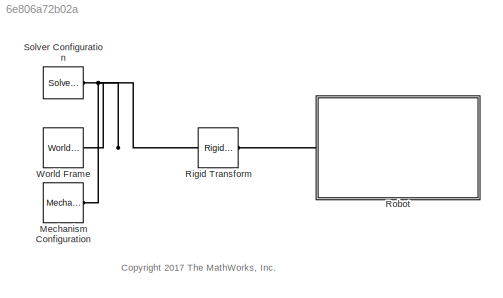
MODEL slx_6e806a72b02a
KIND model
CONFIG AbsTol = auto
CONFIG FixedStep = auto
CONFIG MaxStep = auto
CONFIG MinStep = auto
CONFIG PreLoadFcn = robotParameters
CONFIG RelTol = 1e-3
CONFIG SampleTimeConstraint = Unconstrained
CONFIG Solver = VariableStepAuto
CONFIG SolverMode = Auto
CONFIG SolverName = VariableStepAuto
CONFIG StartTime = 0.0
CONFIG StopTime = 10.0
BLOCK [Reference] Mechanism Configuration  REF=sm_lib/Utilities/Mechanism
Configuration
  Ports = [0, 0, 0, 0, 0, 0, 1]
  SourceBlock = sm_lib/Utilities/Mechanism\nConfiguration
  SourceType = Mechanism\nConfiguration
BLOCK [Reference] Rigid Transform  REF=sm_lib/Frames and
Transforms/Rigid
Transform
  Ports = [0, 0, 0, 0, 0, 1, 1]
  SourceBlock = sm_lib/Frames and\nTransforms/Rigid\nTransform
  SourceType = Rigid\nTransform
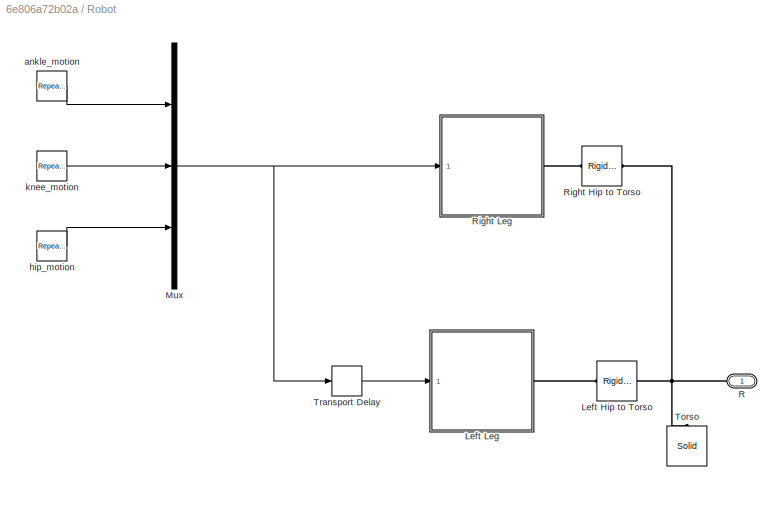
BLOCK [SubSystem] Robot
  Ports = [0, 0, 0, 0, 0, 1]
  RequestExecContextInheritance = off
  Variant = off
BLOCK [Reference] Robot/Left Hip to Torso  REF=sm_lib/Frames and
Transforms/Rigid
Transform
  Ports = [0, 0, 0, 0, 0, 1, 1]
  SourceBlock = sm_lib/Frames and\nTransforms/Rigid\nTransform
  SourceType = Rigid\nTransform
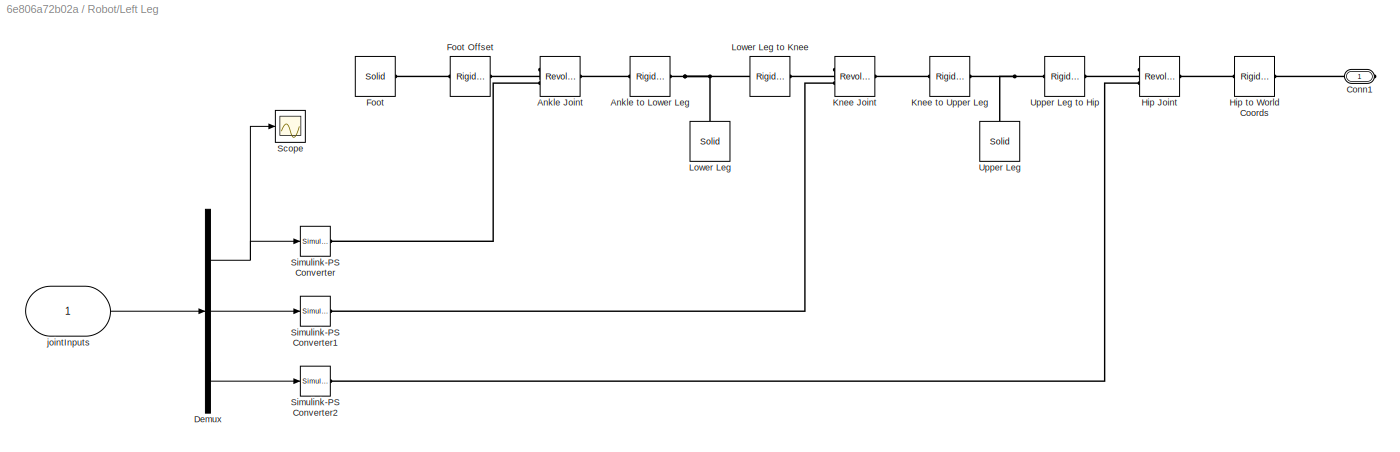
BLOCK [SubSystem] Robot/Left Leg
  Ports = [1, 0, 0, 0, 0, 0, 1]
  RequestExecContextInheritance = off
  Variant = off
BLOCK [Reference] Robot/Left Leg/Ankle Joint  REF=sm_lib/Joints/Revolute Joint
  Ports = [0, 0, 0, 0, 0, 2, 1]
  SourceBlock = sm_lib/Joints/Revolute Joint
  SourceType = Revolute Joint
BLOCK [Reference] Robot/Left Leg/Ankle to Lower Leg  REF=sm_lib/Frames and
Transforms/Rigid
Transform
  Ports = [0, 0, 0, 0, 0, 1, 1]
  SourceBlock = sm_lib/Frames and\nTransforms/Rigid\nTransform
  SourceType = Rigid\nTransform
BLOCK [PMIOPort] Robot/Left Leg/Conn1
  Port = 1
  Side = Right
BLOCK [Demux] Robot/Left Leg/Demux
  DisplayOption = bar
  Outputs = 3
  Ports = [1, 3]
BLOCK [Reference] Robot/Left Leg/Foot  REF=sm_lib/Body Elements/Solid
  Ports = [0, 0, 0, 0, 0, 1]
  SourceBlock = sm_lib/Body Elements/Solid
  SourceType = Solid
BLOCK [Reference] Robot/Left Leg/Foot Offset  REF=sm_lib/Frames and
Transforms/Rigid
Transform
  Ports = [0, 0, 0, 0, 0, 1, 1]
  SourceBlock = sm_lib/Frames and\nTransforms/Rigid\nTransform
  SourceType = Rigid\nTransform
BLOCK [Reference] Robot/Left Leg/Hip Joint  REF=sm_lib/Joints/Revolute Joint
  Ports = [0, 0, 0, 0, 0, 2, 1]
  SourceBlock = sm_lib/Joints/Revolute Joint
  SourceType = Revolute Joint
BLOCK [Reference] Robot/Left Leg/Hip to World Coords  REF=sm_lib/Frames and
Transforms/Rigid
Transform
  Ports = [0, 0, 0, 0, 0, 1, 1]
  SourceBlock = sm_lib/Frames and\nTransforms/Rigid\nTransform
  SourceType = Rigid\nTransform
BLOCK [Reference] Robot/Left Leg/Knee Joint  REF=sm_lib/Joints/Revolute Joint
  Ports = [0, 0, 0, 0, 0, 2, 1]
  SourceBlock = sm_lib/Joints/Revolute Joint
  SourceType = Revolute Joint
BLOCK [Reference] Robot/Left Leg/Knee to Upper Leg  REF=sm_lib/Frames and
Transforms/Rigid
Transform
  Ports = [0, 0, 0, 0, 0, 1, 1]
  SourceBlock = sm_lib/Frames and\nTransforms/Rigid\nTransform
  SourceType = Rigid\nTransform
BLOCK [Reference] Robot/Left Leg/Lower Leg  REF=sm_lib/Body Elements/Solid
  Ports = [0, 0, 0, 0, 0, 0, 1]
  SourceBlock = sm_lib/Body Elements/Solid
  SourceType = Solid
BLOCK [Reference] Robot/Left Leg/Lower Leg to Knee  REF=sm_lib/Frames and
Transforms/Rigid
Transform
  Ports = [0, 0, 0, 0, 0, 1, 1]
  SourceBlock = sm_lib/Frames and\nTransforms/Rigid\nTransform
  SourceType = Rigid\nTransform
BLOCK [Scope] Robot/Left Leg/Scope
  Ports = [1]
  ScopeSpecificationString = Simulink.scopes.TimeScopeBlockCfg('CurrentConfiguration', extmgr.ConfigurationSet(extmgr.Configuration('Core','General UI',true),extmgr.Configuration('Core','Source UI',true),extmgr.Configuration('Sources','WiredSimulink',true),extmgr.Configuration('Visuals','Time Domain',true,'SerializedDisplays',{struct('MinYLimReal','-10','MaxYLimReal','10','YLabelReal','','MinYLimMag','0','MaxYLimMag','10','Le...<+728ch>
BLOCK [Reference] Robot/Left Leg/Simulink-PS Converter  REF=nesl_utility/Simulink-PS
Converter
  Ports = [1, 0, 0, 0, 0, 0, 1]
  SourceBlock = nesl_utility/Simulink-PS\nConverter
  SourceType = Simulink-PS\nConverter
BLOCK [Reference] Robot/Left Leg/Simulink-PS Converter1  REF=nesl_utility/Simulink-PS
Converter
  Ports = [1, 0, 0, 0, 0, 0, 1]
  SourceBlock = nesl_utility/Simulink-PS\nConverter
  SourceType = Simulink-PS\nConverter
BLOCK [Reference] Robot/Left Leg/Simulink-PS Converter2  REF=nesl_utility/Simulink-PS
Converter
  Ports = [1, 0, 0, 0, 0, 0, 1]
  SourceBlock = nesl_utility/Simulink-PS\nConverter
  SourceType = Simulink-PS\nConverter
BLOCK [Reference] Robot/Left Leg/Upper Leg  REF=sm_lib/Body Elements/Solid
  Ports = [0, 0, 0, 0, 0, 0, 1]
  SourceBlock = sm_lib/Body Elements/Solid
  SourceType = Solid
BLOCK [Reference] Robot/Left Leg/Upper Leg to Hip  REF=sm_lib/Frames and
Transforms/Rigid
Transform
  Ports = [0, 0, 0, 0, 0, 1, 1]
  SourceBlock = sm_lib/Frames and\nTransforms/Rigid\nTransform
  SourceType = Rigid\nTransform
BLOCK [Inport] Robot/Left Leg/jointInputs
  IconDisplay = Port number
BLOCK [Mux] Robot/Mux
  DisplayOption = bar
  Inputs = 3
  Ports = [3, 1]
BLOCK [PMIOPort] Robot/R
  Port = 1
  Side = Left
BLOCK [Reference] Robot/Right Hip to Torso  REF=sm_lib/Frames and
Transforms/Rigid
Transform
  Ports = [0, 0, 0, 0, 0, 1, 1]
  SourceBlock = sm_lib/Frames and\nTransforms/Rigid\nTransform
  SourceType = Rigid\nTransform
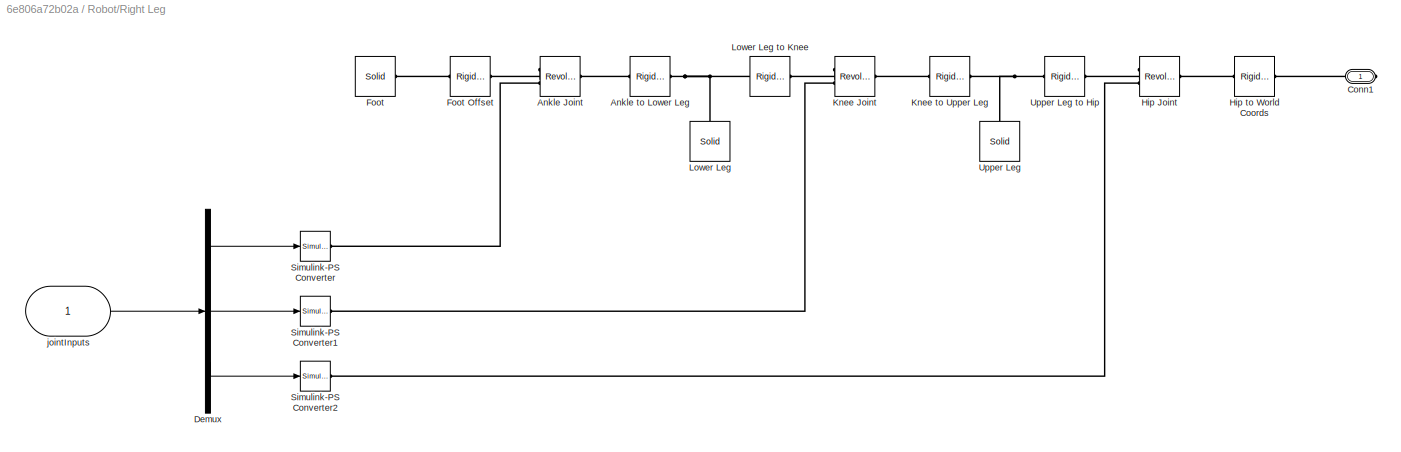
BLOCK [SubSystem] Robot/Right Leg
  Ports = [1, 0, 0, 0, 0, 0, 1]
  RequestExecContextInheritance = off
  Variant = off
BLOCK [Reference] Robot/Right Leg/Ankle Joint  REF=sm_lib/Joints/Revolute Joint
  Ports = [0, 0, 0, 0, 0, 2, 1]
  SourceBlock = sm_lib/Joints/Revolute Joint
  SourceType = Revolute Joint
BLOCK [Reference] Robot/Right Leg/Ankle to Lower Leg  REF=sm_lib/Frames and
Transforms/Rigid
Transform
  Ports = [0, 0, 0, 0, 0, 1, 1]
  SourceBlock = sm_lib/Frames and\nTransforms/Rigid\nTransform
  SourceType = Rigid\nTransform
BLOCK [PMIOPort] Robot/Right Leg/Conn1
  Port = 1
  Side = Right
BLOCK [Demux] Robot/Right Leg/Demux
  DisplayOption = bar
  Outputs = 3
  Ports = [1, 3]
BLOCK [Reference] Robot/Right Leg/Foot  REF=sm_lib/Body Elements/Solid
  Ports = [0, 0, 0, 0, 0, 1]
  SourceBlock = sm_lib/Body Elements/Solid
  SourceType = Solid
BLOCK [Reference] Robot/Right Leg/Foot Offset  REF=sm_lib/Frames and
Transforms/Rigid
Transform
  Ports = [0, 0, 0, 0, 0, 1, 1]
  SourceBlock = sm_lib/Frames and\nTransforms/Rigid\nTransform
  SourceType = Rigid\nTransform
BLOCK [Reference] Robot/Right Leg/Hip Joint  REF=sm_lib/Joints/Revolute Joint
  Ports = [0, 0, 0, 0, 0, 2, 1]
  SourceBlock = sm_lib/Joints/Revolute Joint
  SourceType = Revolute Joint
BLOCK [Reference] Robot/Right Leg/Hip to World Coords  REF=sm_lib/Frames and
Transforms/Rigid
Transform
  Ports = [0, 0, 0, 0, 0, 1, 1]
  SourceBlock = sm_lib/Frames and\nTransforms/Rigid\nTransform
  SourceType = Rigid\nTransform
BLOCK [Reference] Robot/Right Leg/Knee Joint  REF=sm_lib/Joints/Revolute Joint
  Ports = [0, 0, 0, 0, 0, 2, 1]
  SourceBlock = sm_lib/Joints/Revolute Joint
  SourceType = Revolute Joint
BLOCK [Reference] Robot/Right Leg/Knee to Upper Leg  REF=sm_lib/Frames and
Transforms/Rigid
Transform
  Ports = [0, 0, 0, 0, 0, 1, 1]
  SourceBlock = sm_lib/Frames and\nTransforms/Rigid\nTransform
  SourceType = Rigid\nTransform
BLOCK [Reference] Robot/Right Leg/Lower Leg  REF=sm_lib/Body Elements/Solid
  Ports = [0, 0, 0, 0, 0, 0, 1]
  SourceBlock = sm_lib/Body Elements/Solid
  SourceType = Solid
BLOCK [Reference] Robot/Right Leg/Lower Leg to Knee  REF=sm_lib/Frames and
Transforms/Rigid
Transform
  Ports = [0, 0, 0, 0, 0, 1, 1]
  SourceBlock = sm_lib/Frames and\nTransforms/Rigid\nTransform
  SourceType = Rigid\nTransform
BLOCK [Reference] Robot/Right Leg/Simulink-PS Converter  REF=nesl_utility/Simulink-PS
Converter
  Ports = [1, 0, 0, 0, 0, 0, 1]
  SourceBlock = nesl_utility/Simulink-PS\nConverter
  SourceType = Simulink-PS\nConverter
BLOCK [Reference] Robot/Right Leg/Simulink-PS Converter1  REF=nesl_utility/Simulink-PS
Converter
  Ports = [1, 0, 0, 0, 0, 0, 1]
  SourceBlock = nesl_utility/Simulink-PS\nConverter
  SourceType = Simulink-PS\nConverter
BLOCK [Reference] Robot/Right Leg/Simulink-PS Converter2  REF=nesl_utility/Simulink-PS
Converter
  Ports = [1, 0, 0, 0, 0, 0, 1]
  SourceBlock = nesl_utility/Simulink-PS\nConverter
  SourceType = Simulink-PS\nConverter
BLOCK [Reference] Robot/Right Leg/Upper Leg  REF=sm_lib/Body Elements/Solid
  Ports = [0, 0, 0, 0, 0, 0, 1]
  SourceBlock = sm_lib/Body Elements/Solid
  SourceType = Solid
BLOCK [Reference] Robot/Right Leg/Upper Leg to Hip  REF=sm_lib/Frames and
Transforms/Rigid
Transform
  Ports = [0, 0, 0, 0, 0, 1, 1]
  SourceBlock = sm_lib/Frames and\nTransforms/Rigid\nTransform
  SourceType = Rigid\nTransform
BLOCK [Inport] Robot/Right Leg/jointInputs
  IconDisplay = Port number
BLOCK [Reference] Robot/Torso  REF=sm_lib/Body Elements/Solid
  Ports = [0, 0, 0, 0, 0, 0, 1]
  SourceBlock = sm_lib/Body Elements/Solid
  SourceType = Solid
BLOCK [TransportDelay] Robot/Transport Delay
  DelayTime = gaitPeriod/2
  Ports = [1, 1]
BLOCK [Reference] Robot/ankle_motion  REF=simulink/Sources/Repeating
Sequence
  Ports = [0, 1]
  SourceBlock = simulink/Sources/Repeating\nSequence
  SourceType = Repeating table
BLOCK [Reference] Robot/hip_motion  REF=simulink/Sources/Repeating
Sequence
  Ports = [0, 1]
  SourceBlock = simulink/Sources/Repeating\nSequence
  SourceType = Repeating table
BLOCK [Reference] Robot/knee_motion  REF=simulink/Sources/Repeating
Sequence
  Ports = [0, 1]
  SourceBlock = simulink/Sources/Repeating\nSequence
  SourceType = Repeating table
BLOCK [Reference] Solver Configuration  REF=nesl_utility/Solver
Configuration
  Ports = [0, 0, 0, 0, 0, 0, 1]
  SourceBlock = nesl_utility/Solver\nConfiguration
  SourceType = Solver\nConfiguration
BLOCK [Reference] World Frame  REF=sm_lib/Frames and
Transforms/World Frame
  Ports = [0, 0, 0, 0, 0, 0, 1]
  SourceBlock = sm_lib/Frames and\nTransforms/World Frame
  SourceType = World Frame
ANNOTATION (root): <copyright redacted>
NET Robot/Left Leg/Demux:1 -> Robot/Left Leg/Scope:1, Robot/Left Leg/Simulink-PS Converter:1
LINE Robot/Left Leg/Demux:2 -> Robot/Left Leg/Simulink-PS Converter1:1
LINE Robot/Left Leg/Demux:3 -> Robot/Left Leg/Simulink-PS Converter2:1
LINE Robot/Left Leg/jointInputs:1 -> Robot/Left Leg/Demux:1
NET Robot/Mux:1 -> Robot/Right Leg:1, Robot/Transport Delay:1
LINE Robot/Right Leg/Demux:1 -> Robot/Right Leg/Simulink-PS Converter:1
LINE Robot/Right Leg/Demux:2 -> Robot/Right Leg/Simulink-PS Converter1:1
LINE Robot/Right Leg/Demux:3 -> Robot/Right Leg/Simulink-PS Converter2:1
LINE Robot/Right Leg/jointInputs:1 -> Robot/Right Leg/Demux:1
LINE Robot/Transport Delay:1 -> Robot/Left Leg:1
LINE Robot/ankle_motion:1 -> Robot/Mux:1
LINE Robot/hip_motion:1 -> Robot/Mux:3
LINE Robot/knee_motion:1 -> Robot/Mux:2
PNET net1: Mechanism Configuration:RConn1 -- Rigid Transform:LConn1 -- Solver Configuration:RConn1 -- World Frame:RConn1
PLINE Rigid Transform:RConn1 -- Robot:LConn1
PNET net2: Robot/Left Hip to Torso:LConn1 -- Robot/R:RConn1 -- Robot/Right Hip to Torso:LConn1 -- Robot/Torso:RConn1
PLINE Robot/Left Hip to Torso:RConn1 -- Robot/Left Leg:RConn1
PLINE Robot/Left Leg/Ankle Joint:LConn1 -- Robot/Left Leg/Foot Offset:RConn1
PLINE Robot/Left Leg/Ankle Joint:LConn2 -- Robot/Left Leg/Simulink-PS Converter:RConn1
PLINE Robot/Left Leg/Ankle Joint:RConn1 -- Robot/Left Leg/Ankle to Lower Leg:LConn1
PNET net3: Robot/Left Leg/Ankle to Lower Leg:RConn1 -- Robot/Left Leg/Lower Leg to Knee:LConn1 -- Robot/Left Leg/Lower Leg:RConn1
PLINE Robot/Left Leg/Conn1:RConn1 -- Robot/Left Leg/Hip to World Coords:RConn1
PLINE Robot/Left Leg/Foot Offset:LConn1 -- Robot/Left Leg/Foot:LConn1
PLINE Robot/Left Leg/Hip Joint:LConn1 -- Robot/Left Leg/Upper Leg to Hip:RConn1
PLINE Robot/Left Leg/Hip Joint:LConn2 -- Robot/Left Leg/Simulink-PS Converter2:RConn1
PLINE Robot/Left Leg/Hip Joint:RConn1 -- Robot/Left Leg/Hip to World Coords:LConn1
PLINE Robot/Left Leg/Knee Joint:LConn1 -- Robot/Left Leg/Lower Leg to Knee:RConn1
PLINE Robot/Left Leg/Knee Joint:LConn2 -- Robot/Left Leg/Simulink-PS Converter1:RConn1
PLINE Robot/Left Leg/Knee Joint:RConn1 -- Robot/Left Leg/Knee to Upper Leg:LConn1
PNET net4: Robot/Left Leg/Knee to Upper Leg:RConn1 -- Robot/Left Leg/Upper Leg to Hip:LConn1 -- Robot/Left Leg/Upper Leg:RConn1
PLINE Robot/Right Hip to Torso:RConn1 -- Robot/Right Leg:RConn1
PLINE Robot/Right Leg/Ankle Joint:LConn1 -- Robot/Right Leg/Foot Offset:RConn1
PLINE Robot/Right Leg/Ankle Joint:LConn2 -- Robot/Right Leg/Simulink-PS Converter:RConn1
PLINE Robot/Right Leg/Ankle Joint:RConn1 -- Robot/Right Leg/Ankle to Lower Leg:LConn1
PNET net5: Robot/Right Leg/Ankle to Lower Leg:RConn1 -- Robot/Right Leg/Lower Leg to Knee:LConn1 -- Robot/Right Leg/Lower Leg:RConn1
PLINE Robot/Right Leg/Conn1:RConn1 -- Robot/Right Leg/Hip to World Coords:RConn1
PLINE Robot/Right Leg/Foot Offset:LConn1 -- Robot/Right Leg/Foot:LConn1
PLINE Robot/Right Leg/Hip Joint:LConn1 -- Robot/Right Leg/Upper Leg to Hip:RConn1
PLINE Robot/Right Leg/Hip Joint:LConn2 -- Robot/Right Leg/Simulink-PS Converter2:RConn1
PLINE Robot/Right Leg/Hip Joint:RConn1 -- Robot/Right Leg/Hip to World Coords:LConn1
PLINE Robot/Right Leg/Knee Joint:LConn1 -- Robot/Right Leg/Lower Leg to Knee:RConn1
PLINE Robot/Right Leg/Knee Joint:LConn2 -- Robot/Right Leg/Simulink-PS Converter1:RConn1
PLINE Robot/Right Leg/Knee Joint:RConn1 -- Robot/Right Leg/Knee to Upper Leg:LConn1
PNET net6: Robot/Right Leg/Knee to Upper Leg:RConn1 -- Robot/Right Leg/Upper Leg to Hip:LConn1 -- Robot/Right Leg/Upper Leg:RConn1
note: NET lines group one-source signal fan-out (src -> all destinations, sorted); 1:1 wires keep LINE; PNET lines group multi-terminal physical nets as a canonical sorted terminal list (undirected conserving connections); 2-terminal nets keep the pairwise PLINE form
